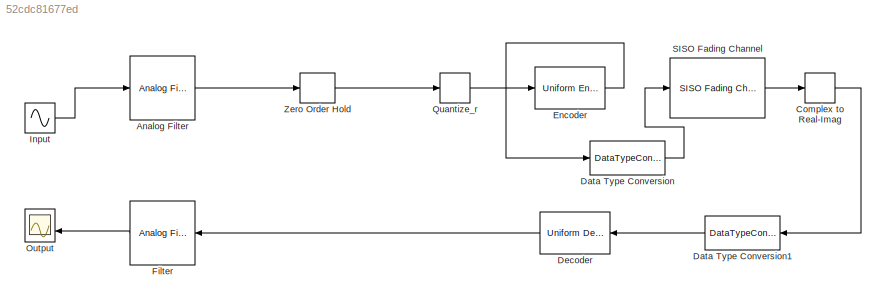
MODEL slx_52cdc81677ed
KIND model
CONFIG AbsTol = auto
CONFIG EnableMultiTasking = off
CONFIG FixedStep = auto
CONFIG MaxStep = auto
CONFIG MinStep = auto
CONFIG RelTol = 1e-3
CONFIG SampleTimeConstraint = Unconstrained
CONFIG SolverName = VariableStepAuto
CONFIG StartTime = 0.0
CONFIG StopTime = 50
BLOCK [Reference]  Encoder  REF=dspquant2/Uniform
Encoder
  SourceBlock = dspquant2/Uniform\nEncoder
  SourceType = Uniform Encoder
BLOCK [Reference]  Filter   REF=dspfdesign/Analog
Filter Design
  SourceBlock = dspfdesign/Analog\nFilter Design
  SourceType = Analog Filter Design
BLOCK [Reference] Analog Filter   REF=dspfdesign/Analog
Filter Design
  SourceBlock = dspfdesign/Analog\nFilter Design
  SourceType = Analog Filter Design
BLOCK [ComplexToRealImag] Complex to Real-Imag
  Output = Real
BLOCK [DataTypeConversion] Data Type Conversion
  OutDataTypeStr = double
  RndMeth = Floor
  SaturateOnIntegerOverflow = off
BLOCK [DataTypeConversion] Data Type Conversion1
  OutDataTypeStr = int8
  RndMeth = Floor
  SaturateOnIntegerOverflow = off
BLOCK [Reference] Decoder  REF=dspquant2/Uniform
Decoder
  SourceBlock = dspquant2/Uniform\nDecoder
  SourceType = Uniform Decoder
BLOCK [Sin] Input
  Amplitude = 5
  Frequency = 5
  SampleTime = 0
BLOCK [Scope] Output
  Floating = off
  NumInputPorts = 2
  ScopeSpecificationString = Simulink.scopes.TimeScopeBlockCfg('CurrentConfiguration', extmgr.ConfigurationSet(extmgr.Configuration('Core','General UI',true),extmgr.Configuration('Core','Source UI',true),extmgr.Configuration('Sources','WiredSimulink',true),extmgr.Configuration('Visuals','Time Domain',true,'SerializedDisplays',{struct('MinYLimReal','-0.01486','MaxYLimReal','0.06178','YLabelReal','','MinYLimMag','0.00000','MaxY...<+1411ch>
BLOCK [Quantizer] Quantize_r
  QuantizationInterval = 1
BLOCK [Reference] SISO Fading Channel  REF=commchan3/SISO Fading Channel
  SourceBlock = commchan3/SISO Fading Channel
  SourceType = SISO Fading Channel
BLOCK [ZeroOrderHold] Zero Order Hold
  SampleTime = -1
LINE  Encoder:1 -> Data Type Conversion:1
LINE  Filter :1 -> Output:2
LINE Analog Filter :1 -> Zero Order Hold:1
LINE Complex to Real-Imag:1 -> Data Type Conversion1:1
LINE Data Type Conversion1:1 -> Decoder:1
LINE Data Type Conversion:1 -> SISO Fading Channel:1
LINE Decoder:1 ->  Filter :1
LINE Input:1 -> Analog Filter :1
LINE Quantize_r:1 ->  Encoder:1
LINE SISO Fading Channel:1 -> Complex to Real-Imag:1
LINE Zero Order Hold:1 -> Quantize_r:1
